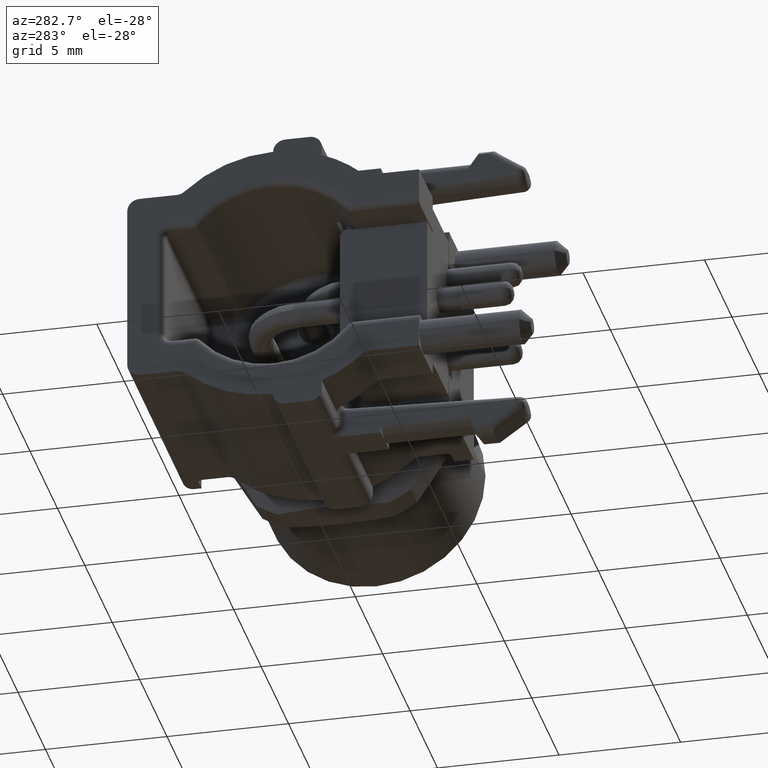
[diagram: clean part render]
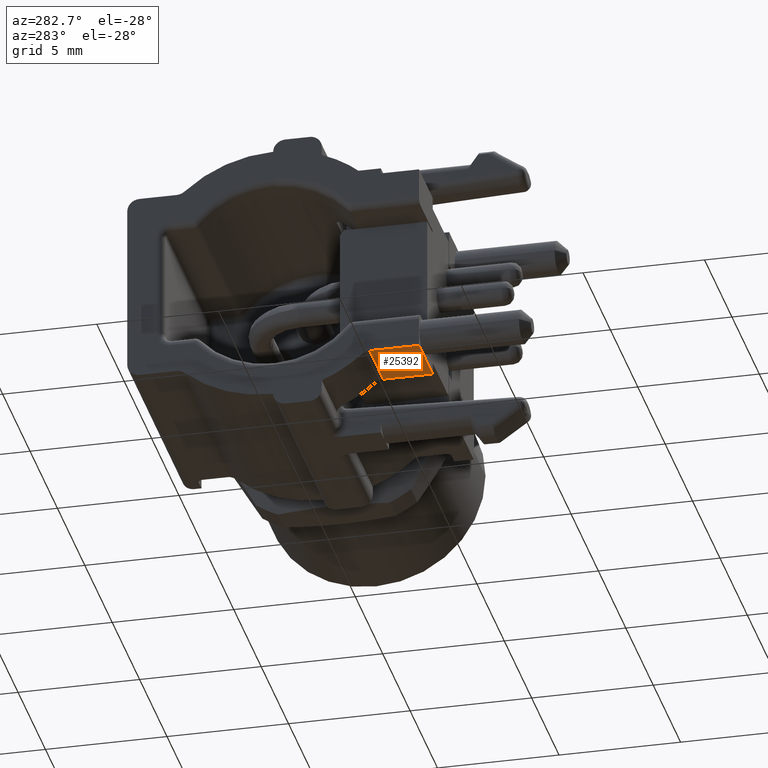
[diagram: same view with one face highlighted and labeled with its STEP entity id]
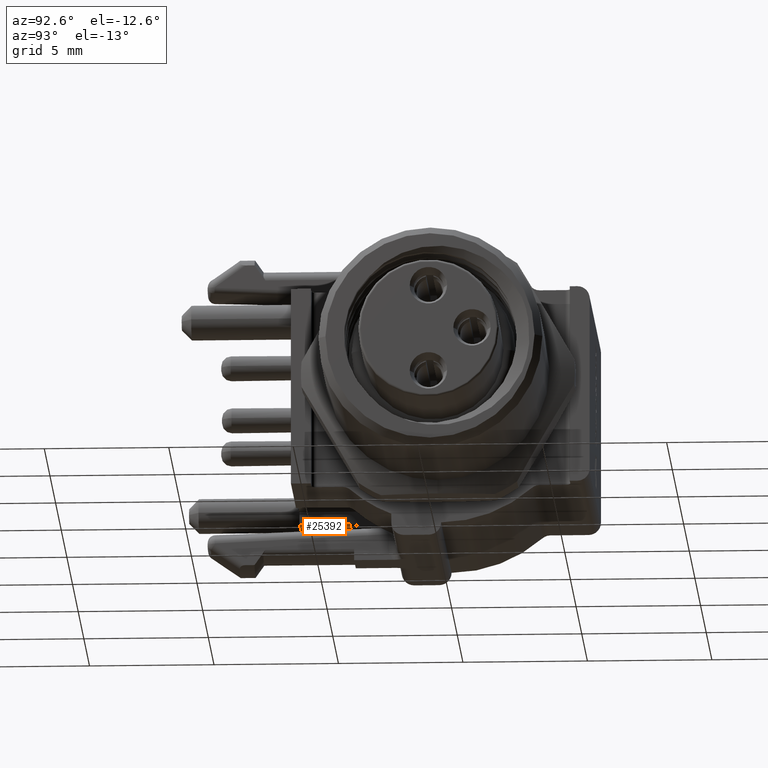
[diagram: same view with one face highlighted and labeled with its STEP entity id]
A machine part, auxiliary view. The second image highlights one B-rep face of the part: STEP entity #25392.
A second angle (auxiliary view) of the same face is appended — the face is thin or edge-on in the first view.
In plain terms, the highlighted planar face has unit normal (0, 0, -1).
Its self-contained STEP definition (entity closure, byte-faithful):
#4639=DIRECTION('',(1.E0,0.E0,0.E0));
#4640=VECTOR('',#4639,9.842519685039E-2);
#4641=CARTESIAN_POINT('',(-3.937007874016E-1,-2.362204724409E-1,
-1.574803149606E-1));
#4642=LINE('',#4641,#4640);
#5199=DIRECTION('',(0.E0,-1.E0,0.E0));
#5200=VECTOR('',#5199,7.997531627571E-2);
#5201=CARTESIAN_POINT('',(-3.937007874016E-1,-1.562451561652E-1,
-1.574803149606E-1));
#5202=LINE('',#5201,#5200);
#9303=DIRECTION('',(-1.E0,0.E0,0.E0));
#9304=VECTOR('',#9303,9.842519685039E-2);
#9305=CARTESIAN_POINT('',(-2.952755905512E-1,-1.562451561652E-1,
-1.574803149606E-1));
#9306=LINE('',#9305,#9304);
#9311=DIRECTION('',(0.E0,-1.E0,0.E0));
#9312=VECTOR('',#9311,7.997531627571E-2);
#9313=CARTESIAN_POINT('',(-2.952755905512E-1,-1.562451561652E-1,
-1.574803149606E-1));
#9314=LINE('',#9313,#9312);
#12065=CARTESIAN_POINT('',(-3.937007874016E-1,-2.362204724409E-1,
-1.574803149606E-1));
#12066=CARTESIAN_POINT('',(-2.952755905512E-1,-2.362204724409E-1,
-1.574803149606E-1));
#12067=VERTEX_POINT('',#12065);
#12068=VERTEX_POINT('',#12066);
#12069=CARTESIAN_POINT('',(-2.952755905512E-1,-1.562451561652E-1,
-1.574803149606E-1));
#12070=VERTEX_POINT('',#12069);
#12071=CARTESIAN_POINT('',(-3.937007874016E-1,-1.562451561652E-1,
-1.574803149606E-1));
#12072=VERTEX_POINT('',#12071);
#25380=CARTESIAN_POINT('',(-3.937007874016E-1,-2.362204724409E-1,
-1.574803149606E-1));
#25381=DIRECTION('',(0.E0,0.E0,-1.E0));
#25382=DIRECTION('',(0.E0,1.E0,0.E0));
#25383=AXIS2_PLACEMENT_3D('',#25380,#25381,#25382);
#25384=PLANE('',#25383);
#25385=ORIENTED_EDGE('',*,*,#19478,.T.);
#25386=ORIENTED_EDGE('',*,*,#18959,.T.);
#25388=ORIENTED_EDGE('',*,*,#25387,.F.);
#25389=ORIENTED_EDGE('',*,*,#25372,.T.);
#25390=EDGE_LOOP('',(#25385,#25386,#25388,#25389));
#25391=FACE_OUTER_BOUND('',#25390,.F.);
#25392=ADVANCED_FACE('',(#25391),#25384,.T.);
#18959=EDGE_CURVE('',#12067,#12068,#4642,.T.);
#19478=EDGE_CURVE('',#12072,#12067,#5202,.T.);
#25372=EDGE_CURVE('',#12070,#12072,#9306,.T.);
#25387=EDGE_CURVE('',#12070,#12068,#9314,.T.);